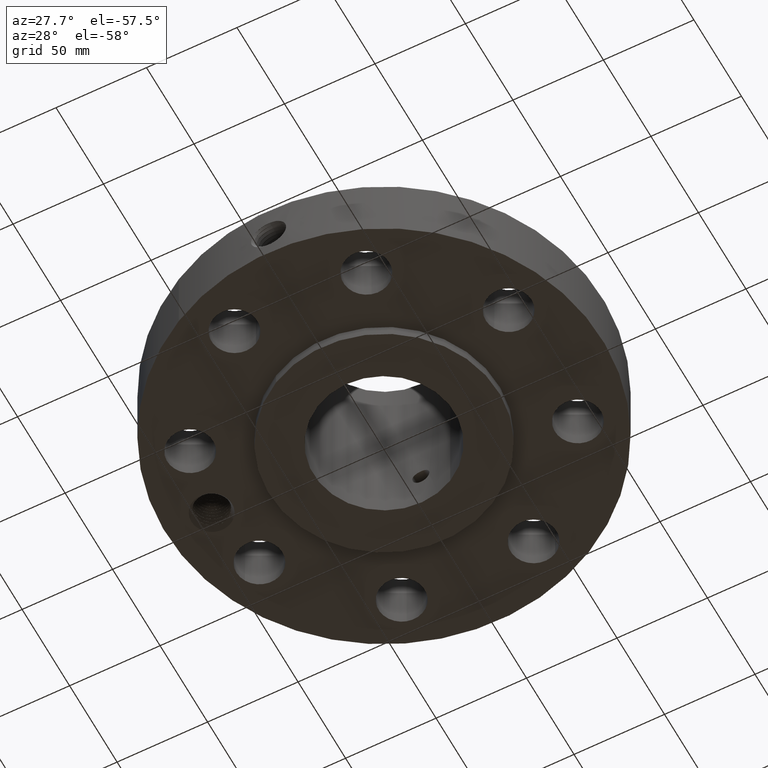
[diagram: clean part render]
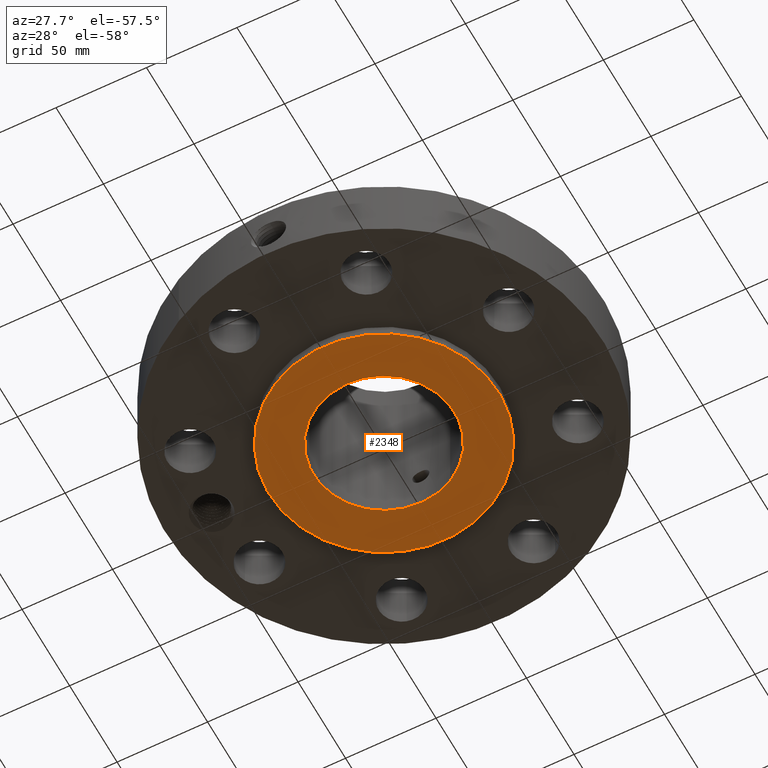
[diagram: same view with one face highlighted and labeled with its STEP entity id]
A machine part, auxiliary view. The second image highlights one B-rep face of the part: STEP entity #2348.
In plain terms, the highlighted planar face has unit normal (0, 0, -1).
Its self-contained STEP definition (entity closure, byte-faithful):
#1215=AXIS2_PLACEMENT_3D('Circle Axis2P3D',#1213,#1214,$) ;
#1241=AXIS2_PLACEMENT_3D('Circle Axis2P3D',#1239,#1240,$) ;
#2324=AXIS2_PLACEMENT_3D('Plane Axis2P3D',#2321,#2322,#2323) ;
#2332=AXIS2_PLACEMENT_3D('Circle Axis2P3D',#2330,#2331,$) ;
#2341=AXIS2_PLACEMENT_3D('Circle Axis2P3D',#2339,#2340,$) ;
#1213=CARTESIAN_POINT('Axis2P3D Location',(0.,0.,2.79741234551E-016)) ;
#1217=CARTESIAN_POINT('Vertex',(1.19856384652,2.19395640473,2.79741234551E-016)) ;
#1219=CARTESIAN_POINT('Vertex',(-1.19856384652,-2.19395640473,2.79741234551E-016)) ;
#1239=CARTESIAN_POINT('Axis2P3D Location',(0.,0.,2.79741234551E-016)) ;
#2321=CARTESIAN_POINT('Axis2P3D Location',(0.,1.53400000001,0.)) ;
#2330=CARTESIAN_POINT('Axis2P3D Location',(0.,0.,0.)) ;
#2334=CARTESIAN_POINT('Vertex',(0.735438776222,1.34621164995,-2.79741234551E-015)) ;
#2336=CARTESIAN_POINT('Vertex',(-0.735438776222,-1.34621164995,-2.79741234551E-015)) ;
#2339=CARTESIAN_POINT('Axis2P3D Location',(0.,0.,0.)) ;
#1214=DIRECTION('Axis2P3D Direction',(0.,0.,-0.0393700787402)) ;
#1240=DIRECTION('Axis2P3D Direction',(0.,0.,-0.0393700787402)) ;
#2322=DIRECTION('Axis2P3D Direction',(0.,0.,-0.0393700787402)) ;
#2323=DIRECTION('Axis2P3D XDirection',(0.0393700787402,0.,0.)) ;
#2331=DIRECTION('Axis2P3D Direction',(0.,0.,-0.0393700787402)) ;
#2340=DIRECTION('Axis2P3D Direction',(0.,0.,-0.0393700787402)) ;
#2327=ORIENTED_EDGE('',*,*,#1243,.T.) ;
#2328=ORIENTED_EDGE('',*,*,#1221,.T.) ;
#2345=ORIENTED_EDGE('',*,*,#2338,.F.) ;
#2346=ORIENTED_EDGE('',*,*,#2343,.F.) ;
#2347=FACE_BOUND('',#2344,.T.) ;
#2348=ADVANCED_FACE('PartBody',(#2329,#2347),#2325,.T.) ;
#1216=CIRCLE('generated circle',#1215,2.50000000001) ;
#1242=CIRCLE('generated circle',#1241,2.50000000001) ;
#2333=CIRCLE('generated circle',#2332,1.53400000001) ;
#2342=CIRCLE('generated circle',#2341,1.53400000001) ;
#1221=EDGE_CURVE('',#1218,#1220,#1216,.T.) ;
#1243=EDGE_CURVE('',#1220,#1218,#1242,.T.) ;
#2338=EDGE_CURVE('',#2335,#2337,#2333,.T.) ;
#2343=EDGE_CURVE('',#2337,#2335,#2342,.T.) ;
#2326=EDGE_LOOP('',(#2327,#2328)) ;
#2344=EDGE_LOOP('',(#2345,#2346)) ;
#2329=FACE_OUTER_BOUND('',#2326,.T.) ;
#2325=PLANE('',#2324) ;
#1218=VERTEX_POINT('',#1217) ;
#1220=VERTEX_POINT('',#1219) ;
#2335=VERTEX_POINT('',#2334) ;
#2337=VERTEX_POINT('',#2336) ;